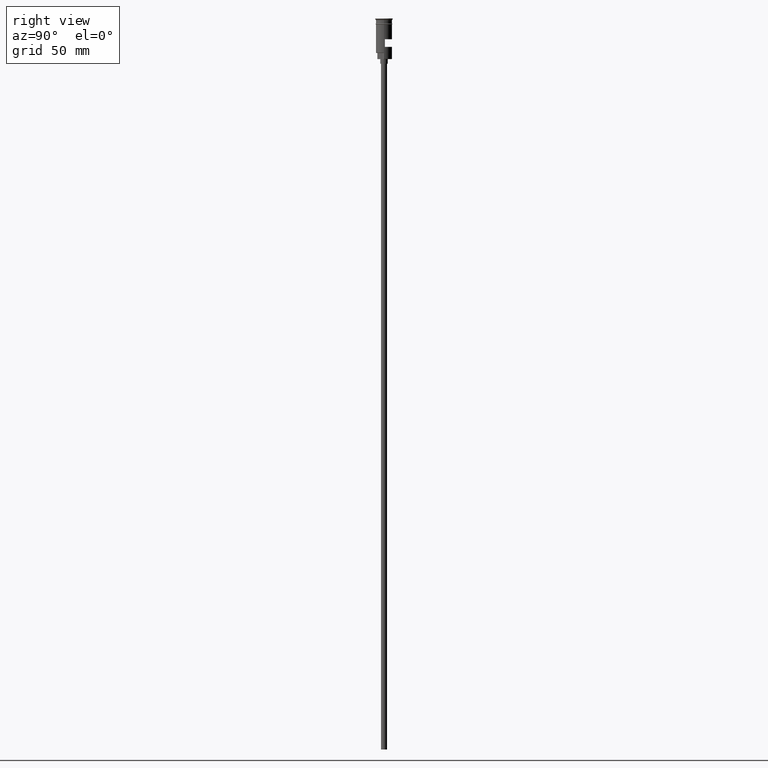
[diagram: clean part render]
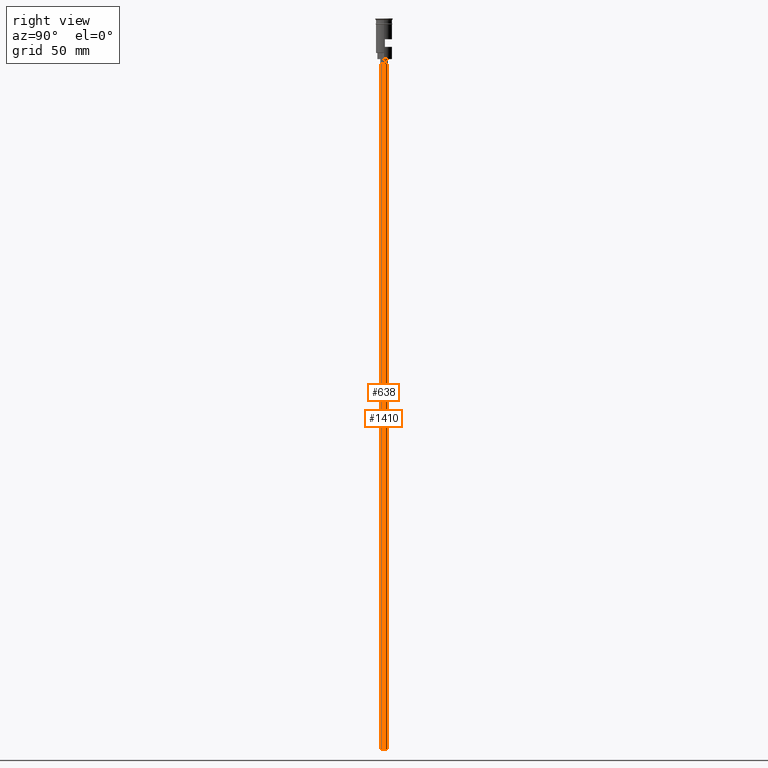
[diagram: same view with one multi-face feature highlighted, each face labeled with its STEP entity id]
A machine part, right view. The highlighted faces form ONE feature: a constant-radius fillet chain: 2 tangent blend faces with common blend radius 2 mm. The faces share edges in the B-rep.
Their STEP definitions:
[1] entity #638 (Cylinder):
#57 = CARTESIAN_POINT ( 'NONE',  ( 0.000000000000000000, 0.000000000000000000, -29.50000000000000000 ) ) ;
#151 = EDGE_CURVE ( 'NONE', #1055, #1063, #1433, .T. ) ;
#153 = LINE ( 'NONE', #514, #1360 ) ;
#238 = FACE_OUTER_BOUND ( 'NONE', #737, .T. ) ;
#307 = DIRECTION ( 'NONE',  ( -1.000000000000000000, 0.000000000000000000, 0.000000000000000000 ) ) ;
#325 = DIRECTION ( 'NONE',  ( -0.000000000000000000, -0.000000000000000000, 1.000000000000000000 ) ) ;
#405 = ORIENTED_EDGE ( 'NONE', *, *, #433, .T. ) ;
#413 = CARTESIAN_POINT ( 'NONE',  ( 2.000000000000000000, 0.000000000000000000, -476.5000000000000568 ) ) ;
#418 = CARTESIAN_POINT ( 'NONE',  ( -2.000000000000000000, 2.449293598294706414E-16, -476.5000000000000568 ) ) ;
#427 = DIRECTION ( 'NONE',  ( -0.000000000000000000, -0.000000000000000000, 1.000000000000000000 ) ) ;
#433 = EDGE_CURVE ( 'NONE', #983, #1604, #1296, .T. ) ;
#514 = CARTESIAN_POINT ( 'NONE',  ( 2.000000000000000000, 0.000000000000000000, -476.5000000000000568 ) ) ;
#562 = ORIENTED_EDGE ( 'NONE', *, *, #151, .F. ) ;
#589 = CARTESIAN_POINT ( 'NONE',  ( 2.000000000000000000, 0.000000000000000000, -29.50000000000000000 ) ) ;
#601 = CARTESIAN_POINT ( 'NONE',  ( 0.000000000000000000, 0.000000000000000000, -476.5000000000000568 ) ) ;
#630 = AXIS2_PLACEMENT_3D ( 'NONE', #57, #1425, #307 ) ;
#638 = ADVANCED_FACE ( 'NONE', ( #238 ), #797, .T. ) ;
#668 = LINE ( 'NONE', #418, #1538 ) ;
#730 = CARTESIAN_POINT ( 'NONE',  ( 0.000000000000000000, 0.000000000000000000, -476.5000000000000568 ) ) ;
#737 = EDGE_LOOP ( 'NONE', ( #562, #1233, #405, #1416 ) ) ;
#797 = CYLINDRICAL_SURFACE ( 'NONE', #1355, 2.000000000000000000 ) ;
#808 = CARTESIAN_POINT ( 'NONE',  ( -2.000000000000000000, 2.449293598294706414E-16, -29.50000000000000000 ) ) ;
#983 = VERTEX_POINT ( 'NONE', #808 ) ;
#994 = EDGE_CURVE ( 'NONE', #1055, #983, #668, .T. ) ;
#1055 = VERTEX_POINT ( 'NONE', #1133 ) ;
#1063 = VERTEX_POINT ( 'NONE', #413 ) ;
#1133 = CARTESIAN_POINT ( 'NONE',  ( -2.000000000000000000, 2.449293598294706414E-16, -476.5000000000000568 ) ) ;
#1170 = AXIS2_PLACEMENT_3D ( 'NONE', #601, #1356, #1321 ) ;
#1233 = ORIENTED_EDGE ( 'NONE', *, *, #994, .T. ) ;
#1289 = DIRECTION ( 'NONE',  ( 1.000000000000000000, 0.000000000000000000, 0.000000000000000000 ) ) ;
#1296 = CIRCLE ( 'NONE', #630, 2.000000000000000000 ) ;
#1321 = DIRECTION ( 'NONE',  ( -1.000000000000000000, 0.000000000000000000, 0.000000000000000000 ) ) ;
#1328 = EDGE_CURVE ( 'NONE', #1063, #1604, #153, .T. ) ;
#1355 = AXIS2_PLACEMENT_3D ( 'NONE', #730, #325, #1289 ) ;
#1356 = DIRECTION ( 'NONE',  ( 0.000000000000000000, 0.000000000000000000, -1.000000000000000000 ) ) ;
#1360 = VECTOR ( 'NONE', #1508, 1000.000000000000000 ) ;
#1416 = ORIENTED_EDGE ( 'NONE', *, *, #1328, .F. ) ;
#1425 = DIRECTION ( 'NONE',  ( 0.000000000000000000, 0.000000000000000000, -1.000000000000000000 ) ) ;
#1433 = CIRCLE ( 'NONE', #1170, 2.000000000000000000 ) ;
#1508 = DIRECTION ( 'NONE',  ( -0.000000000000000000, -0.000000000000000000, 1.000000000000000000 ) ) ;
#1538 = VECTOR ( 'NONE', #427, 1000.000000000000000 ) ;
#1604 = VERTEX_POINT ( 'NONE', #589 ) ;
[2] entity #1410 (Cylinder):
#4 = DIRECTION ( 'NONE',  ( 0.000000000000000000, 0.000000000000000000, -1.000000000000000000 ) ) ;
#22 = ORIENTED_EDGE ( 'NONE', *, *, #1328, .T. ) ;
#153 = LINE ( 'NONE', #514, #1360 ) ;
#194 = CIRCLE ( 'NONE', #1515, 2.000000000000000000 ) ;
#250 = AXIS2_PLACEMENT_3D ( 'NONE', #1078, #1582, #1097 ) ;
#292 = FACE_OUTER_BOUND ( 'NONE', #1600, .T. ) ;
#413 = CARTESIAN_POINT ( 'NONE',  ( 2.000000000000000000, 0.000000000000000000, -476.5000000000000568 ) ) ;
#418 = CARTESIAN_POINT ( 'NONE',  ( -2.000000000000000000, 2.449293598294706414E-16, -476.5000000000000568 ) ) ;
#427 = DIRECTION ( 'NONE',  ( -0.000000000000000000, -0.000000000000000000, 1.000000000000000000 ) ) ;
#488 = DIRECTION ( 'NONE',  ( -1.000000000000000000, 0.000000000000000000, 0.000000000000000000 ) ) ;
#514 = CARTESIAN_POINT ( 'NONE',  ( 2.000000000000000000, 0.000000000000000000, -476.5000000000000568 ) ) ;
#531 = EDGE_CURVE ( 'NONE', #1063, #1055, #194, .T. ) ;
#589 = CARTESIAN_POINT ( 'NONE',  ( 2.000000000000000000, 0.000000000000000000, -29.50000000000000000 ) ) ;
#598 = CARTESIAN_POINT ( 'NONE',  ( 0.000000000000000000, 0.000000000000000000, -476.5000000000000568 ) ) ;
#658 = AXIS2_PLACEMENT_3D ( 'NONE', #1542, #902, #910 ) ;
#668 = LINE ( 'NONE', #418, #1538 ) ;
#803 = CYLINDRICAL_SURFACE ( 'NONE', #658, 2.000000000000000000 ) ;
#805 = EDGE_CURVE ( 'NONE', #1604, #983, #1484, .T. ) ;
#808 = CARTESIAN_POINT ( 'NONE',  ( -2.000000000000000000, 2.449293598294706414E-16, -29.50000000000000000 ) ) ;
#902 = DIRECTION ( 'NONE',  ( -0.000000000000000000, -0.000000000000000000, 1.000000000000000000 ) ) ;
#910 = DIRECTION ( 'NONE',  ( 1.000000000000000000, 0.000000000000000000, 0.000000000000000000 ) ) ;
#983 = VERTEX_POINT ( 'NONE', #808 ) ;
#994 = EDGE_CURVE ( 'NONE', #1055, #983, #668, .T. ) ;
#1007 = ORIENTED_EDGE ( 'NONE', *, *, #994, .F. ) ;
#1047 = ORIENTED_EDGE ( 'NONE', *, *, #805, .T. ) ;
#1055 = VERTEX_POINT ( 'NONE', #1133 ) ;
#1063 = VERTEX_POINT ( 'NONE', #413 ) ;
#1078 = CARTESIAN_POINT ( 'NONE',  ( 0.000000000000000000, 0.000000000000000000, -29.50000000000000000 ) ) ;
#1097 = DIRECTION ( 'NONE',  ( -1.000000000000000000, 0.000000000000000000, 0.000000000000000000 ) ) ;
#1133 = CARTESIAN_POINT ( 'NONE',  ( -2.000000000000000000, 2.449293598294706414E-16, -476.5000000000000568 ) ) ;
#1305 = ORIENTED_EDGE ( 'NONE', *, *, #531, .F. ) ;
#1328 = EDGE_CURVE ( 'NONE', #1063, #1604, #153, .T. ) ;
#1360 = VECTOR ( 'NONE', #1508, 1000.000000000000000 ) ;
#1410 = ADVANCED_FACE ( 'NONE', ( #292 ), #803, .T. ) ;
#1484 = CIRCLE ( 'NONE', #250, 2.000000000000000000 ) ;
#1508 = DIRECTION ( 'NONE',  ( -0.000000000000000000, -0.000000000000000000, 1.000000000000000000 ) ) ;
#1515 = AXIS2_PLACEMENT_3D ( 'NONE', #598, #4, #488 ) ;
#1538 = VECTOR ( 'NONE', #427, 1000.000000000000000 ) ;
#1542 = CARTESIAN_POINT ( 'NONE',  ( 0.000000000000000000, 0.000000000000000000, -476.5000000000000568 ) ) ;
#1582 = DIRECTION ( 'NONE',  ( 0.000000000000000000, 0.000000000000000000, -1.000000000000000000 ) ) ;
#1600 = EDGE_LOOP ( 'NONE', ( #1007, #1305, #22, #1047 ) ) ;
#1604 = VERTEX_POINT ( 'NONE', #589 ) ;